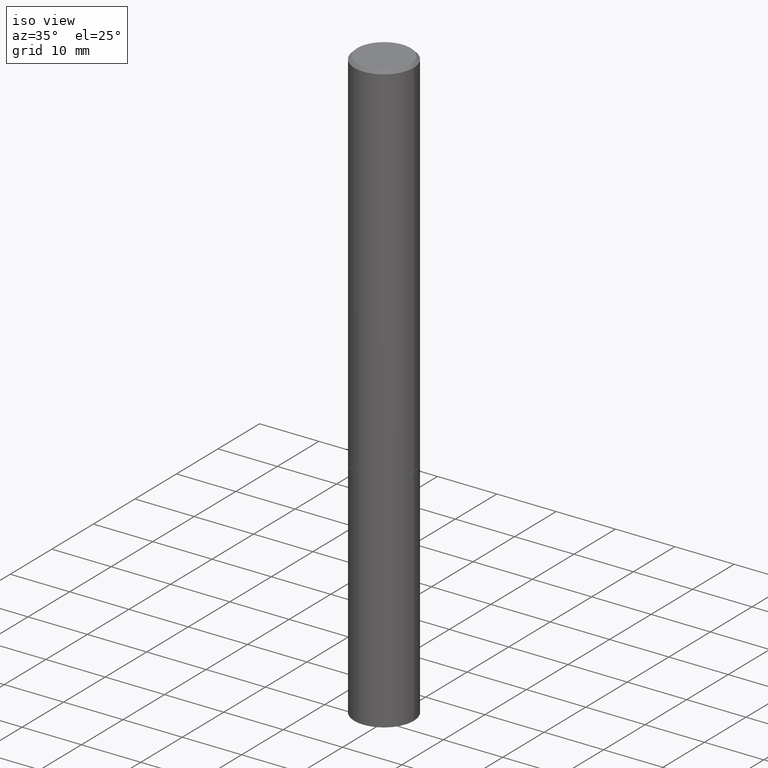
[diagram: clean part render]
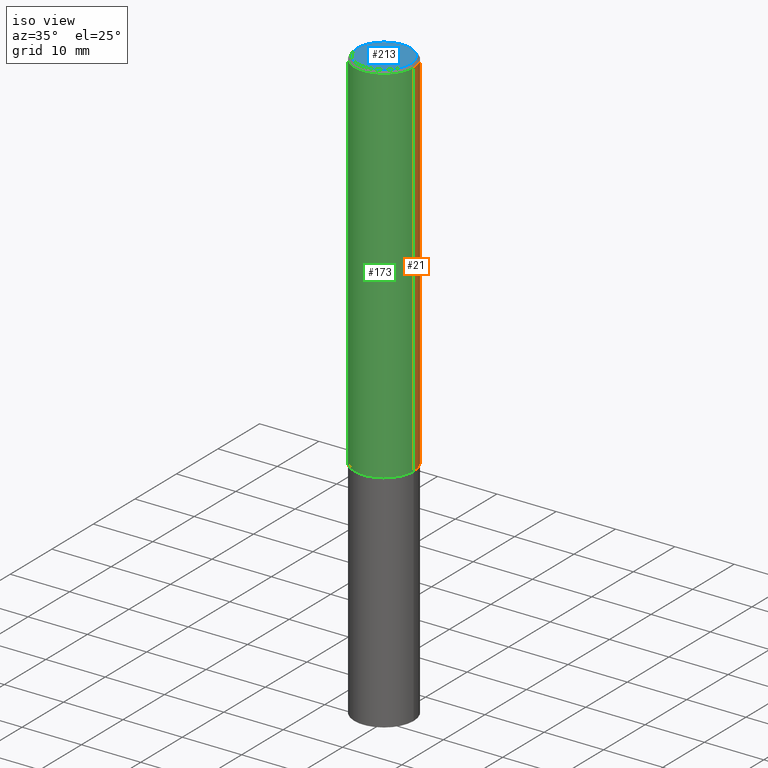
[diagram: same view with three faces highlighted in distinct colors, each labeled with its STEP entity id]
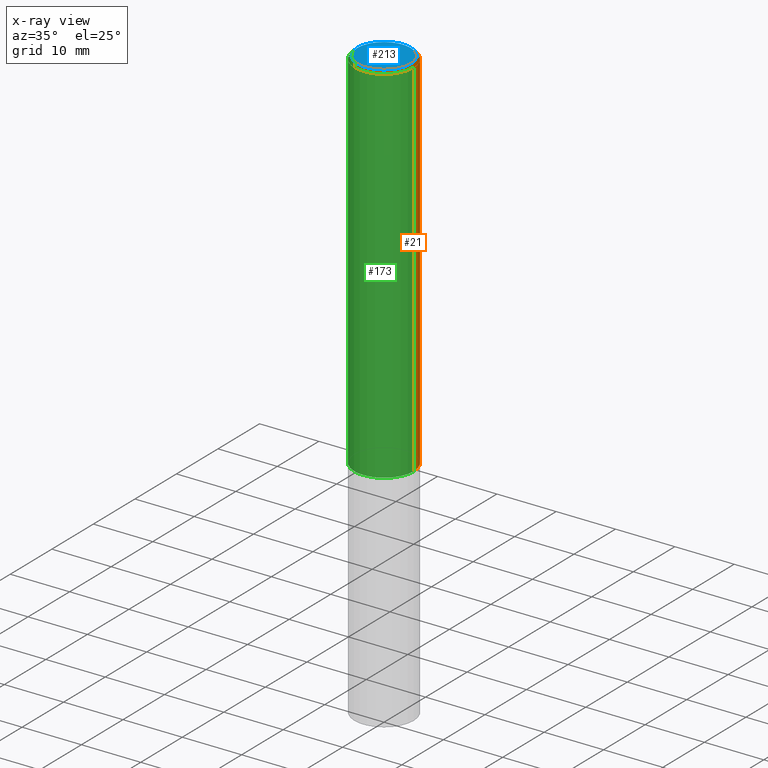
[diagram: x-ray of the same camera — body ghosted, the three highlighted faces saturated]
A machine part, iso view with three faces highlighted in distinct colors.
The next image is the same camera in x-ray (body ghosted, the three faces saturated) — at least one of them is partly hidden behind the body in this view.
Their STEP definitions:

[orange] entity #21 — the highlighted cylindrical surface (edge-blend (fillet) strip) has radius 5 mm, axis along (-0, 0, 1).
#1 = CIRCLE ( 'NONE', #333, 0.1968500000000000527 ) ;
#13 = ORIENTED_EDGE ( 'NONE', *, *, #147, .F. ) ;
#20 = DIRECTION ( 'NONE',  ( 1.000000000000000000, -6.982962677686266711E-15, 0.000000000000000000 ) ) ;
#21 = ADVANCED_FACE ( 'NONE', ( #331 ), #241, .T. ) ;
#34 = EDGE_CURVE ( 'NONE', #215, #131, #301, .T. ) ;
#37 = EDGE_LOOP ( 'NONE', ( #176, #59, #13, #231 ) ) ;
#44 = DIRECTION ( 'NONE',  ( -2.445468806185136877E-29, 3.491481338843145188E-15, 1.000000000000000000 ) ) ;
#59 = ORIENTED_EDGE ( 'NONE', *, *, #139, .T. ) ;
#70 = CIRCLE ( 'NONE', #278, 0.1968499999999996364 ) ;
#72 = DIRECTION ( 'NONE',  ( 1.000000000000000000, -6.982962677686266711E-15, 4.876176775795935793E-29 ) ) ;
#73 = CARTESIAN_POINT ( 'NONE',  ( -0.1968499999999998307, 1.398703375343756013E-15, -9.682923725166775270E-30 ) ) ;
#95 = DIRECTION ( 'NONE',  ( -2.445468806185136597E-29, 3.491481338843145583E-15, 1.000000000000000000 ) ) ;
#122 = DIRECTION ( 'NONE',  ( -2.445468806185136597E-29, 3.491481338843145583E-15, 1.000000000000000000 ) ) ;
#131 = VERTEX_POINT ( 'NONE', #330 ) ;
#139 = EDGE_CURVE ( 'NONE', #205, #146, #266, .T. ) ;
#146 = VERTEX_POINT ( 'NONE', #184 ) ;
#147 = EDGE_CURVE ( 'NONE', #131, #146, #70, .T. ) ;
#150 = CARTESIAN_POINT ( 'NONE',  ( 4.890937612370278413E-31, -6.982962677686297772E-17, -0.02000000000000002123 ) ) ;
#154 = DIRECTION ( 'NONE',  ( -2.445468806185136877E-29, 3.491481338843145188E-15, 1.000000000000000000 ) ) ;
#159 = EDGE_CURVE ( 'NONE', #215, #205, #1, .T. ) ;
#176 = ORIENTED_EDGE ( 'NONE', *, *, #159, .T. ) ;
#180 = CARTESIAN_POINT ( 'NONE',  ( 0.1968499999999998307, -1.374596203102540425E-15, 9.598753983154291049E-30 ) ) ;
#184 = CARTESIAN_POINT ( 'NONE',  ( -0.1968499999999996364, 1.304766576325675944E-15, -0.02000000000000002123 ) ) ;
#200 = CARTESIAN_POINT ( 'NONE',  ( -0.1968500000000000527, -2.895644097366364896E-15, -2.439899999999999736 ) ) ;
#205 = VERTEX_POINT ( 'NONE', #200 ) ;
#211 = CARTESIAN_POINT ( 'NONE',  ( 5.966699340211114556E-29, -8.518865318643389958E-15, -2.439899999999999736 ) ) ;
#215 = VERTEX_POINT ( 'NONE', #248 ) ;
#231 = ORIENTED_EDGE ( 'NONE', *, *, #34, .F. ) ;
#237 = DIRECTION ( 'NONE',  ( 1.000000000000000000, -6.982962677686266711E-15, 0.000000000000000000 ) ) ;
#241 = CYLINDRICAL_SURFACE ( 'NONE', #255, 0.1968499999999998307 ) ;
#248 = CARTESIAN_POINT ( 'NONE',  ( 0.1968500000000000527, -9.893461521745931567E-15, -2.439899999999999736 ) ) ;
#255 = AXIS2_PLACEMENT_3D ( 'NONE', #356, #95, #72 ) ;
#266 = LINE ( 'NONE', #73, #271 ) ;
#268 = DIRECTION ( 'NONE',  ( -2.445468806185136597E-29, 3.491481338843145583E-15, 1.000000000000000000 ) ) ;
#271 = VECTOR ( 'NONE', #44, 39.37007874015748143 ) ;
#278 = AXIS2_PLACEMENT_3D ( 'NONE', #150, #122, #237 ) ;
#296 = VECTOR ( 'NONE', #154, 39.37007874015748143 ) ;
#301 = LINE ( 'NONE', #180, #296 ) ;
#330 = CARTESIAN_POINT ( 'NONE',  ( 0.1968499999999996364, -1.420318657638186558E-15, -0.02000000000000002123 ) ) ;
#331 = FACE_OUTER_BOUND ( 'NONE', #37, .T. ) ;
#333 = AXIS2_PLACEMENT_3D ( 'NONE', #211, #268, #20 ) ;
#356 = CARTESIAN_POINT ( 'NONE',  ( 0.000000000000000000, 0.000000000000000000, 0.000000000000000000 ) ) ;

[blue] entity #213 — the highlighted planar face has unit normal (0, -0, -1).
#2 = CARTESIAN_POINT ( 'NONE',  ( 0.1768499999999996464, -1.316798864272039577E-15, 4.268512490109333727E-18 ) ) ;
#12 = CIRCLE ( 'NONE', #361, 0.1768499999999996464 ) ;
#50 = DIRECTION ( 'NONE',  ( 1.000000000000000000, -6.982962677686266711E-15, 4.875932113059887537E-29 ) ) ;
#56 = FACE_OUTER_BOUND ( 'NONE', #120, .T. ) ;
#61 = CIRCLE ( 'NONE', #167, 0.1768499999999996464 ) ;
#78 = DIRECTION ( 'NONE',  ( -1.000000000000000000, 6.982962677686265922E-15, -4.876176775795935793E-29 ) ) ;
#102 = ORIENTED_EDGE ( 'NONE', *, *, #229, .T. ) ;
#120 = EDGE_LOOP ( 'NONE', ( #174, #102 ) ) ;
#167 = AXIS2_PLACEMENT_3D ( 'NONE', #220, #334, #50 ) ;
#174 = ORIENTED_EDGE ( 'NONE', *, *, #260, .T. ) ;
#190 = CARTESIAN_POINT ( 'NONE',  ( -1.043851414335219820E-46, 1.490343170380447200E-32, 4.268512490100411279E-18 ) ) ;
#203 = VERTEX_POINT ( 'NONE', #222 ) ;
#213 = ADVANCED_FACE ( 'NONE', ( #56 ), #277, .F. ) ;
#217 = DIRECTION ( 'NONE',  ( 1.000000000000000000, -6.982962677686266711E-15, 4.875932113059887537E-29 ) ) ;
#220 = CARTESIAN_POINT ( 'NONE',  ( -1.043851414335219820E-46, 1.490343170380447200E-32, 4.268512490100411279E-18 ) ) ;
#222 = CARTESIAN_POINT ( 'NONE',  ( -0.1768499999999996464, 1.269851762937245083E-15, 4.268512490091652920E-18 ) ) ;
#229 = EDGE_CURVE ( 'NONE', #319, #203, #61, .T. ) ;
#232 = AXIS2_PLACEMENT_3D ( 'NONE', #245, #336, #78 ) ;
#245 = CARTESIAN_POINT ( 'NONE',  ( 1.234936949548813631E-15, 0.1768499999999996464, -6.153342185293588703E-16 ) ) ;
#258 = DIRECTION ( 'NONE',  ( -2.445468806185136597E-29, 3.491481338843145583E-15, 1.000000000000000000 ) ) ;
#260 = EDGE_CURVE ( 'NONE', #203, #319, #12, .T. ) ;
#277 = PLANE ( 'NONE',  #232 ) ;
#319 = VERTEX_POINT ( 'NONE', #2 ) ;
#334 = DIRECTION ( 'NONE',  ( -2.445468806185136597E-29, 3.491481338843145583E-15, 1.000000000000000000 ) ) ;
#336 = DIRECTION ( 'NONE',  ( 2.438088387897960049E-29, -3.491481338843145188E-15, -1.000000000000000000 ) ) ;
#361 = AXIS2_PLACEMENT_3D ( 'NONE', #190, #258, #217 ) ;

[green] entity #173 — the highlighted cylindrical surface (edge-blend (fillet) strip) has radius 5 mm, axis along (-0, 0, 1).
#7 = CARTESIAN_POINT ( 'NONE',  ( 0.000000000000000000, 0.000000000000000000, 0.000000000000000000 ) ) ;
#19 = AXIS2_PLACEMENT_3D ( 'NONE', #27, #186, #252 ) ;
#27 = CARTESIAN_POINT ( 'NONE',  ( 5.966699340211114556E-29, -8.518865318643389958E-15, -2.439899999999999736 ) ) ;
#30 = CIRCLE ( 'NONE', #305, 0.1968499999999996364 ) ;
#34 = EDGE_CURVE ( 'NONE', #215, #131, #301, .T. ) ;
#44 = DIRECTION ( 'NONE',  ( -2.445468806185136877E-29, 3.491481338843145188E-15, 1.000000000000000000 ) ) ;
#58 = DIRECTION ( 'NONE',  ( 1.000000000000000000, -6.982962677686266711E-15, 4.876176775795935793E-29 ) ) ;
#60 = EDGE_LOOP ( 'NONE', ( #62, #350, #93, #86 ) ) ;
#62 = ORIENTED_EDGE ( 'NONE', *, *, #139, .F. ) ;
#73 = CARTESIAN_POINT ( 'NONE',  ( -0.1968499999999998307, 1.398703375343756013E-15, -9.682923725166775270E-30 ) ) ;
#77 = CYLINDRICAL_SURFACE ( 'NONE', #181, 0.1968499999999998307 ) ;
#86 = ORIENTED_EDGE ( 'NONE', *, *, #366, .F. ) ;
#88 = DIRECTION ( 'NONE',  ( -2.445468806185136597E-29, 3.491481338843145583E-15, 1.000000000000000000 ) ) ;
#93 = ORIENTED_EDGE ( 'NONE', *, *, #34, .T. ) ;
#131 = VERTEX_POINT ( 'NONE', #330 ) ;
#139 = EDGE_CURVE ( 'NONE', #205, #146, #266, .T. ) ;
#146 = VERTEX_POINT ( 'NONE', #184 ) ;
#154 = DIRECTION ( 'NONE',  ( -2.445468806185136877E-29, 3.491481338843145188E-15, 1.000000000000000000 ) ) ;
#166 = DIRECTION ( 'NONE',  ( -2.445468806185136597E-29, 3.491481338843145583E-15, 1.000000000000000000 ) ) ;
#173 = ADVANCED_FACE ( 'NONE', ( #308 ), #77, .T. ) ;
#180 = CARTESIAN_POINT ( 'NONE',  ( 0.1968499999999998307, -1.374596203102540425E-15, 9.598753983154291049E-30 ) ) ;
#181 = AXIS2_PLACEMENT_3D ( 'NONE', #7, #166, #58 ) ;
#184 = CARTESIAN_POINT ( 'NONE',  ( -0.1968499999999996364, 1.304766576325675944E-15, -0.02000000000000002123 ) ) ;
#186 = DIRECTION ( 'NONE',  ( -2.445468806185136597E-29, 3.491481338843145583E-15, 1.000000000000000000 ) ) ;
#194 = CIRCLE ( 'NONE', #19, 0.1968500000000000527 ) ;
#198 = CARTESIAN_POINT ( 'NONE',  ( 4.890937612370278413E-31, -6.982962677686297772E-17, -0.02000000000000002123 ) ) ;
#200 = CARTESIAN_POINT ( 'NONE',  ( -0.1968500000000000527, -2.895644097366364896E-15, -2.439899999999999736 ) ) ;
#205 = VERTEX_POINT ( 'NONE', #200 ) ;
#215 = VERTEX_POINT ( 'NONE', #248 ) ;
#248 = CARTESIAN_POINT ( 'NONE',  ( 0.1968500000000000527, -9.893461521745931567E-15, -2.439899999999999736 ) ) ;
#252 = DIRECTION ( 'NONE',  ( 1.000000000000000000, -6.982962677686266711E-15, 0.000000000000000000 ) ) ;
#262 = DIRECTION ( 'NONE',  ( 1.000000000000000000, -6.982962677686266711E-15, 0.000000000000000000 ) ) ;
#266 = LINE ( 'NONE', #73, #271 ) ;
#271 = VECTOR ( 'NONE', #44, 39.37007874015748143 ) ;
#294 = EDGE_CURVE ( 'NONE', #205, #215, #194, .T. ) ;
#296 = VECTOR ( 'NONE', #154, 39.37007874015748143 ) ;
#301 = LINE ( 'NONE', #180, #296 ) ;
#305 = AXIS2_PLACEMENT_3D ( 'NONE', #198, #88, #262 ) ;
#308 = FACE_OUTER_BOUND ( 'NONE', #60, .T. ) ;
#330 = CARTESIAN_POINT ( 'NONE',  ( 0.1968499999999996364, -1.420318657638186558E-15, -0.02000000000000002123 ) ) ;
#350 = ORIENTED_EDGE ( 'NONE', *, *, #294, .T. ) ;
#366 = EDGE_CURVE ( 'NONE', #146, #131, #30, .T. ) ;